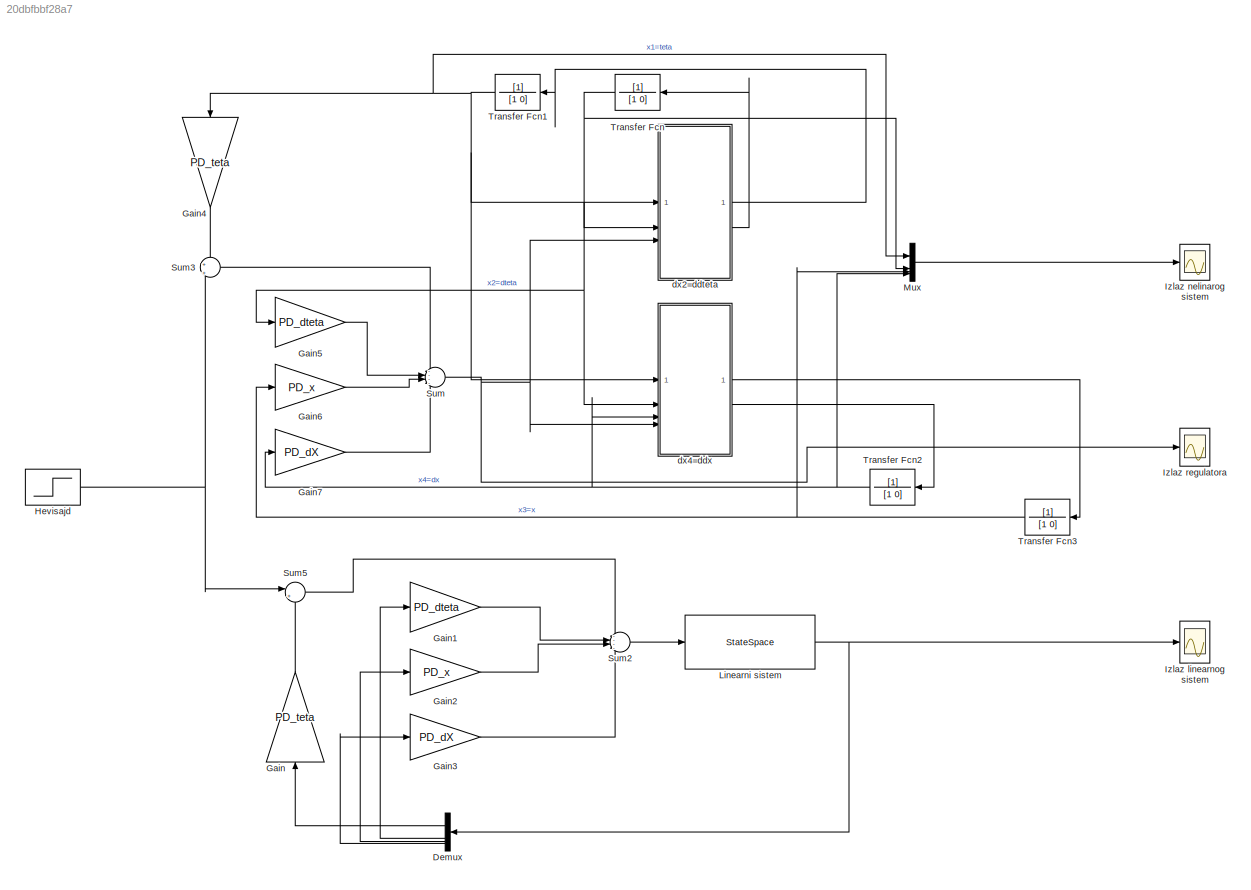
MODEL slx_20dbfbbf28a7
KIND model
CONFIG AbsTol = auto
CONFIG EnableMultiTasking = off
CONFIG FixedStep = auto
CONFIG MaxStep = auto
CONFIG MinStep = auto
CONFIG RelTol = 1e-5
CONFIG SampleTimeConstraint = Unconstrained
CONFIG SolverName = VariableStepAuto
CONFIG StartTime = 0.0
CONFIG StopTime = 25
WORKSPACE source: mxarray member
WORKSPACE T = 0
BLOCK [Demux] Demux
BLOCK [Gain] Gain
  Gain = PD_teta
  NameLocation = right
BLOCK [Gain] Gain1
  Gain = PD_dteta
BLOCK [Gain] Gain2
  Gain = PD_x
BLOCK [Gain] Gain3
  Gain = PD_dX
BLOCK [Gain] Gain4
  Gain = PD_teta
  NameLocation = left
BLOCK [Gain] Gain5
  Gain = PD_dteta
BLOCK [Gain] Gain6
  Gain = PD_x
BLOCK [Gain] Gain7
  Gain = PD_dX
BLOCK [Step] Hevisajd
  After = pi/12
  SampleTime = 0
BLOCK [Scope] Izlaz linearnog sistem
  Floating = off
  NumInputPorts = 1
  ScopeSpecificationString = Simulink.scopes.TimeScopeBlockCfg('CurrentConfiguration', extmgr.ConfigurationSet(extmgr.Configuration('Core','General UI',true),extmgr.Configuration('Core','Source UI',true),extmgr.Configuration('Sources','WiredSimulink',true,'DataLoggingVariableName','ScopeData1'),extmgr.Configuration('Visuals','Time Domain',true,'SerializedDisplays',{struct('MinYLimReal','-0.05901','MaxYLimReal','0.41037','YLab...<+1618ch>
BLOCK [Scope] Izlaz nelinarog sistem
  Floating = off
  NumInputPorts = 1
  ScopeSpecificationString = Simulink.scopes.TimeScopeBlockCfg('CurrentConfiguration', extmgr.ConfigurationSet(extmgr.Configuration('Core','General UI',true),extmgr.Configuration('Core','Source UI',true),extmgr.Configuration('Sources','WiredSimulink',true,'DataLoggingVariableName','ScopeData4'),extmgr.Configuration('Visuals','Time Domain',true,'SerializedDisplays',{struct('MinYLimReal','-0.05901','MaxYLimReal','0.41037','YLab...<+1642ch>
BLOCK [Scope] Izlaz regulatora
  Floating = off
  NumInputPorts = 1
  ScopeSpecificationString = Simulink.scopes.TimeScopeBlockCfg('CurrentConfiguration', extmgr.ConfigurationSet(extmgr.Configuration('Core','General UI',true),extmgr.Configuration('Core','Source UI',true),extmgr.Configuration('Sources','WiredSimulink',true,'DataLoggingVariableName','ScopeData2'),extmgr.Configuration('Visuals','Time Domain',true,'SerializedDisplays',{struct('MinYLimReal','-0.35971','MaxYLimReal','0.61942','YLab...<+1480ch>
BLOCK [StateSpace] Linearni sistem
  A = A
  B = B
  C = C
  D = [0;0;0;0]
  InitialCondition = 0
BLOCK [Mux] Mux
  DisplayOption = bar
BLOCK [Sum] Sum
  Inputs = ----
BLOCK [Sum] Sum2
  Inputs = ----
BLOCK [Sum] Sum3
  Inputs = +|+
BLOCK [Sum] Sum5
  Inputs = |++
BLOCK [TransferFcn] Transfer Fcn
  Denominator = [1 0]
BLOCK [TransferFcn] Transfer Fcn1
  Denominator = [1 0]
BLOCK [TransferFcn] Transfer Fcn2
  Denominator = [1 0]
BLOCK [TransferFcn] Transfer Fcn3
  Denominator = [1 0]
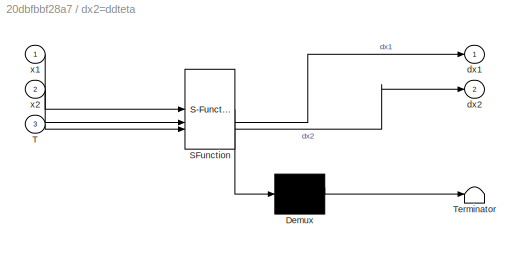
BLOCK [SubSystem] dx2=ddteta
  ErrorFcn = Stateflow.Translate.translate
  PermitHierarchicalResolution = ExplicitOnly
  SFBlockType = MATLAB Function
  TreatAsAtomicUnit = on
BLOCK [Demux] dx2=ddteta/ Demux 
  Outputs = 1
BLOCK [S-Function] dx2=ddteta/ SFunction 
  EnableBusSupport = on
  FunctionName = sf_sfun
  PortCounts = [3 3]
  SFcnIsStateOwnerBlock = off
  SFunctionDeploymentMode = off
  Tag = Stateflow S-Function 1
BLOCK [Terminator] dx2=ddteta/ Terminator 
BLOCK [Inport] dx2=ddteta/T
  Port = 3
BLOCK [Outport] dx2=ddteta/dx1
BLOCK [Outport] dx2=ddteta/dx2
  Port = 2
BLOCK [Inport] dx2=ddteta/x1
BLOCK [Inport] dx2=ddteta/x2
  Port = 2
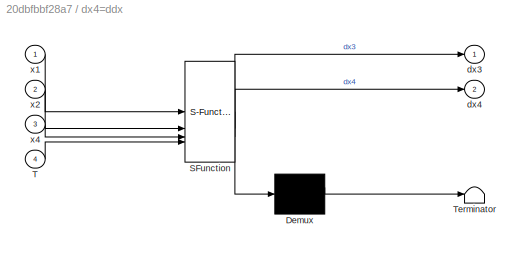
BLOCK [SubSystem] dx4=ddx
  ErrorFcn = Stateflow.Translate.translate
  PermitHierarchicalResolution = ExplicitOnly
  SFBlockType = MATLAB Function
  TreatAsAtomicUnit = on
BLOCK [Demux] dx4=ddx/ Demux 
  Outputs = 1
BLOCK [S-Function] dx4=ddx/ SFunction 
  EnableBusSupport = on
  FunctionName = sf_sfun
  PortCounts = [4 3]
  SFcnIsStateOwnerBlock = off
  SFunctionDeploymentMode = off
  Tag = Stateflow S-Function 2
BLOCK [Terminator] dx4=ddx/ Terminator 
BLOCK [Inport] dx4=ddx/T
  Port = 4
BLOCK [Outport] dx4=ddx/dx3
BLOCK [Outport] dx4=ddx/dx4
  Port = 2
BLOCK [Inport] dx4=ddx/x1
BLOCK [Inport] dx4=ddx/x2
  Port = 2
BLOCK [Inport] dx4=ddx/x4
  Port = 3
LINE Demux:1 -> Gain:1
LINE Demux:2 -> Gain1:1
LINE Demux:3 -> Gain2:1
LINE Demux:4 -> Gain3:1
LINE Gain1:1 -> Sum2:2
LINE Gain2:1 -> Sum2:3
LINE Gain3:1 -> Sum2:4
LINE Gain4:1 -> Sum3:1
LINE Gain5:1 -> Sum:2
LINE Gain6:1 -> Sum:3
LINE Gain7:1 -> Sum:4
LINE Gain:1 -> Sum5:2
NET Hevisajd:1 -> Sum3:2, Sum5:1
NET Linearni sistem:1 -> Demux:1, Izlaz linearnog sistem:1
LINE Mux:1 -> Izlaz nelinarog sistem:1
LINE Sum2:1 -> Linearni sistem:1
LINE Sum3:1 -> Sum:1
LINE Sum5:1 -> Sum2:1
NET Sum:1 -> Izlaz regulatora:1, dx2=ddteta:3, dx4=ddx:4
NET Transfer Fcn1:1 -> Gain4:1, Mux:1, dx2=ddteta:1, dx4=ddx:1
NET Transfer Fcn2:1 -> Gain7:1, Mux:4, dx4=ddx:3
NET Transfer Fcn3:1 -> Gain6:1, Mux:3
NET Transfer Fcn:1 -> Gain5:1, Mux:2, dx2=ddteta:2, dx4=ddx:2
LINE dx2=ddteta:1 -> Transfer Fcn1:1
LINE dx2=ddteta:2 -> Transfer Fcn:1
LINE dx4=ddx:1 -> Transfer Fcn3:1
LINE dx4=ddx:2 -> Transfer Fcn2:1
note: NET lines group one-source signal fan-out (src -> all destinations, sorted); 1:1 wires keep LINE
CHART dx2=ddteta states=1 transitions=1
  STATE_LABEL 'eML_blk_kernel()'
  STATE_LABEL 'SCRIPT:\nfunction [dx1,dx2] = fcn(x1, x2, T)\n% x1 = theta\n% x2 = d theta\n% x3 = x\n% x4 = d x\nm = 85; % masa ručke\nM = 3.5; % masa točkova\nR = 0.1; % poluprečnik točkova\nIw = 0.1; % moment inercije točkova\nIr = 70; % moment inercije ručke\nL = 1.7; % dužina ručke\ng = 9.81;\n%T = 0; % moment na točkovima\nK = 1; \n\n%% kobasice\n\nk1 = (M + m) * R + Iw/R;\nk2 = m*L*R;\nk3 = m*L;\nk4 = Ir + m*L*L;\nk5 = m*L*g;\nk...<+153ch>'
CHART dx4=ddx states=1 transitions=1
  STATE_LABEL 'eML_blk_kernel()'
  STATE_LABEL 'SCRIPT:\nfunction [dx3,dx4] = fcn(x1, x2, x4, T)\n% x1 = theta\n% x2 = d theta\n% x3 = x\n% x4 = d x\nm = 85; % masa ručke\nM = 3.5; % masa točkova\nR = 0.1; % poluprečnik točkova\nIw = 0.1; % moment inercije točkova\nIr = 70; % moment inercije ručke\nL = 1.7; % dužina ručke\ng = 9.81;\n%T = 0; % moment na točkovima\nK = 1; \n\n% kobasice\n\nk1 = (M + m) * R + Iw/R;\nk2 = m*L*R;\nk3 = m*L;\nk4 = Ir + m*L*L;\nk5 = m*L*g...<+194ch>'
CHART  states=0 transitions=0
CHART  states=0 transitions=0
